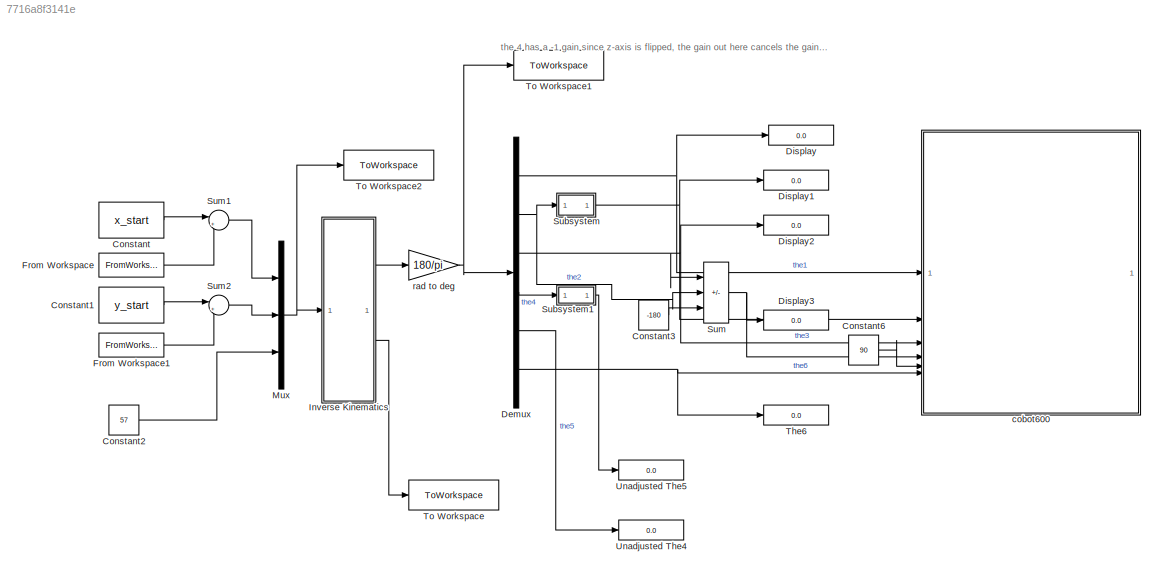
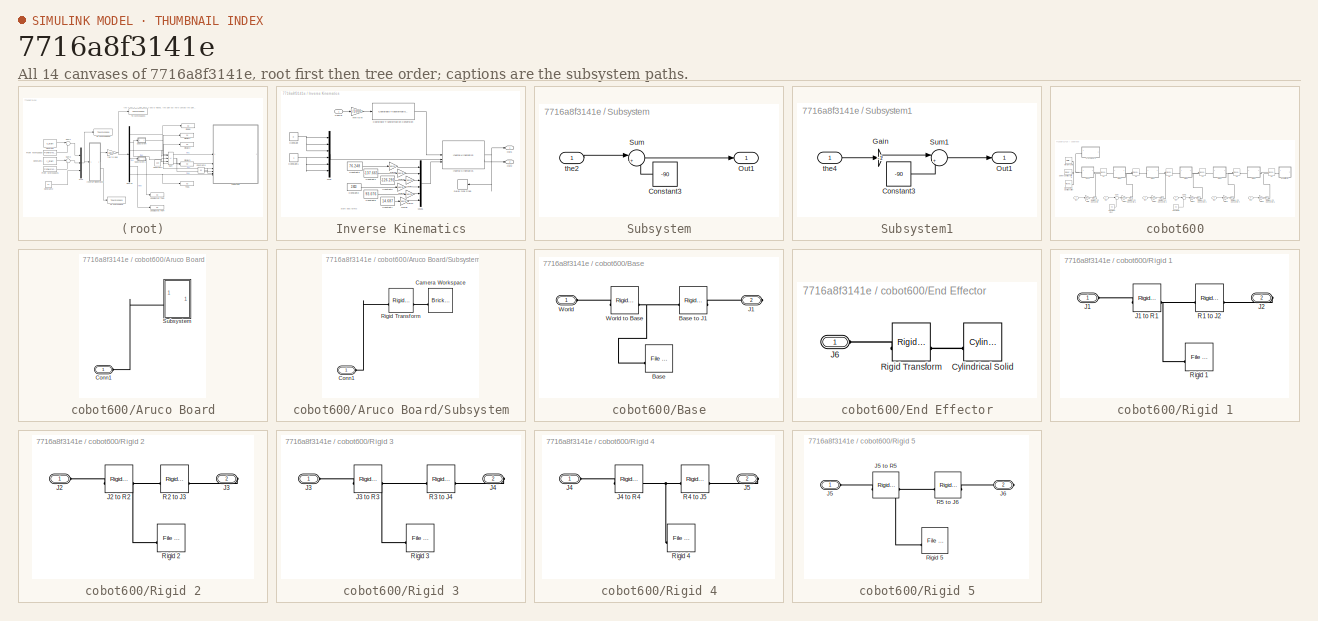
[diagram: thumbnail index - all 14 canvases of the model, root first then tree order]
MODEL slx_7716a8f3141e
KIND model
CONFIG AbsTol = auto
CONFIG EnableMultiTasking = off
CONFIG FixedStep = auto
CONFIG MaxStep = auto
CONFIG MinStep = auto
CONFIG RelTol = 1e-3
CONFIG SampleTimeConstraint = Unconstrained
CONFIG SolverName = VariableStepAuto
CONFIG StartTime = 0.0
CONFIG StopTime = 80
BLOCK [Constant] Constant
  SampleTime = 0.5
  Value = x_start
BLOCK [Constant] Constant1
  Value = y_start
BLOCK [Constant] Constant2
  Value = 57
BLOCK [Constant] Constant3
  Value = -180
BLOCK [Constant] Constant6
  Value = 90
BLOCK [Demux] Demux
  Outputs = 6
BLOCK [Display] Display
  Decimation = 1
BLOCK [Display] Display1
  Decimation = 1
BLOCK [Display] Display2
  Decimation = 1
BLOCK [Display] Display3
  Decimation = 1
BLOCK [FromWorkspace] From Workspace
  OutputAfterFinalValue = Setting to zero
  SampleTime = 0.5
  VariableName = x_Os
BLOCK [FromWorkspace] From Workspace1
  OutputAfterFinalValue = Setting to zero
  SampleTime = 0.5
  VariableName = y_Os
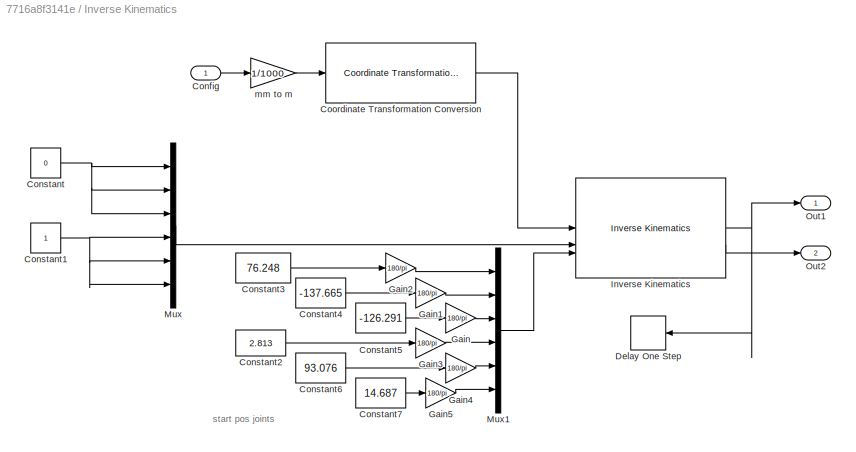
BLOCK [SubSystem] Inverse Kinematics
BLOCK [Inport] Inverse Kinematics/Config
BLOCK [Constant] Inverse Kinematics/Constant
  Value = 0
BLOCK [Constant] Inverse Kinematics/Constant1
BLOCK [Constant] Inverse Kinematics/Constant2
  Value = 2.813
BLOCK [Constant] Inverse Kinematics/Constant3
  Value = 76.248
BLOCK [Constant] Inverse Kinematics/Constant4
  Value = -137.665
BLOCK [Constant] Inverse Kinematics/Constant5
  Value = -126.291
BLOCK [Constant] Inverse Kinematics/Constant6
  Value = 93.076
BLOCK [Constant] Inverse Kinematics/Constant7
  Value = 14.687
BLOCK [Reference] Inverse Kinematics/Coordinate Transformation Conversion  REF=robotcorelib/Coordinate Transformation Conversion
  SourceBlock = robotcorelib/Coordinate Transformation Conversion
  SourceType = robotics.slcore.internal.block.CoordinateTransformationConversion
BLOCK [Delay] Inverse Kinematics/Delay One Step
  DelayLength = 1
  InputPortMap = u0
BLOCK [Gain] Inverse Kinematics/Gain
  Gain = 180/pi
BLOCK [Gain] Inverse Kinematics/Gain1
  Gain = 180/pi
BLOCK [Gain] Inverse Kinematics/Gain2
  Gain = 180/pi
BLOCK [Gain] Inverse Kinematics/Gain3
  Gain = 180/pi
BLOCK [Gain] Inverse Kinematics/Gain4
  Gain = 180/pi
BLOCK [Gain] Inverse Kinematics/Gain5
  Gain = 180/pi
BLOCK [Reference] Inverse Kinematics/Inverse Kinematics  REF=robotmaniplib/Inverse Kinematics
  SourceBlock = robotmaniplib/Inverse Kinematics
  SourceType = Inverse Kinematics
BLOCK [Mux] Inverse Kinematics/Mux
  DisplayOption = bar
  Inputs = 6
BLOCK [Mux] Inverse Kinematics/Mux1
  DisplayOption = bar
  Inputs = 6
BLOCK [Outport] Inverse Kinematics/Out1
BLOCK [Outport] Inverse Kinematics/Out2
  Port = 2
BLOCK [Gain] Inverse Kinematics/mm to m
  Gain = 1/1000
BLOCK [Mux] Mux
  DisplayOption = bar
  Inputs = 3
BLOCK [SubSystem] Subsystem
BLOCK [Constant] Subsystem/Constant3
  Value = -90
BLOCK [Outport] Subsystem/Out1
BLOCK [Sum] Subsystem/Sum
  Inputs = |++
BLOCK [Inport] Subsystem/the2
BLOCK [SubSystem] Subsystem1
BLOCK [Constant] Subsystem1/Constant3
  Value = -90
BLOCK [Gain] Subsystem1/Gain
  Gain = -1
BLOCK [Outport] Subsystem1/Out1
BLOCK [Sum] Subsystem1/Sum1
  Inputs = |++
BLOCK [Inport] Subsystem1/the4
BLOCK [Sum] Sum
  IconShape = rectangular
  Inputs = |--+
BLOCK [Sum] Sum1
  Inputs = |++
BLOCK [Sum] Sum2
  Inputs = |++
BLOCK [Display] The6
  Decimation = 1
BLOCK [ToWorkspace] To Workspace
  FixptAsFi = on
  MaxDataPoints = inf
  SampleTime = -1
  SaveFormat = Timeseries
  VariableName = simout
BLOCK [ToWorkspace] To Workspace1
  FixptAsFi = on
  MaxDataPoints = inf
  SampleTime = -1
  Save2DSignal = 2-D array (concatenate along first dimension)
  VariableName = IKJointData
BLOCK [ToWorkspace] To Workspace2
  FixptAsFi = on
  MaxDataPoints = inf
  SampleTime = -1
  Save2DSignal = 2-D array (concatenate along first dimension)
  VariableName = IK_Input
BLOCK [Display] Unadjusted The4
  Decimation = 1
BLOCK [Display] Unadjusted The5
  Decimation = 1
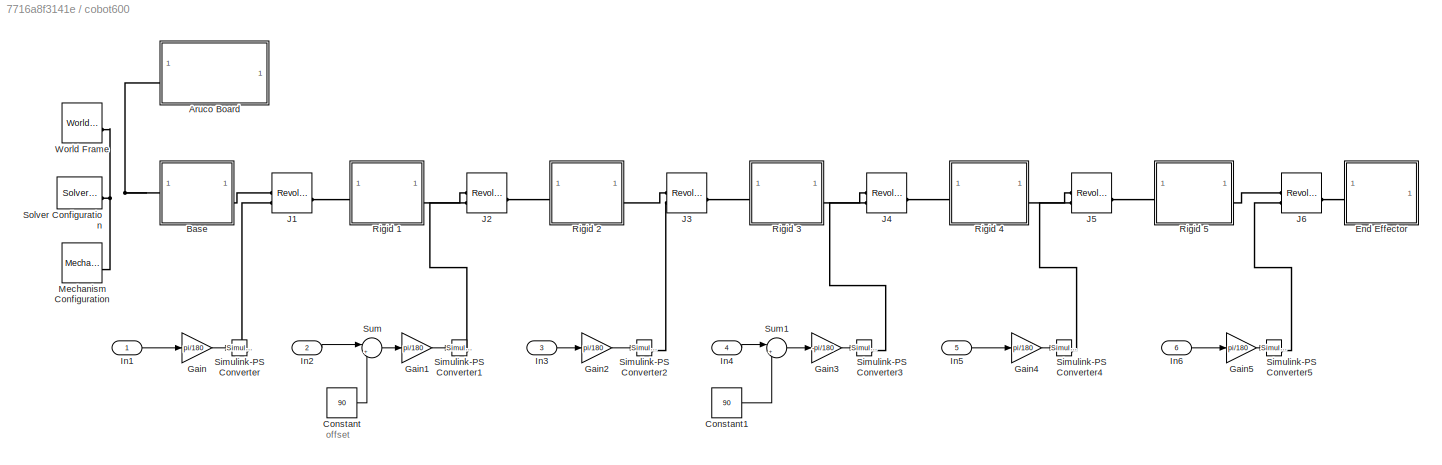
BLOCK [SubSystem] cobot600
BLOCK [SubSystem] cobot600/Aruco Board
BLOCK [PMIOPort] cobot600/Aruco Board/Conn1
  Side = Left
BLOCK [SubSystem] cobot600/Aruco Board/Subsystem
BLOCK [Reference] cobot600/Aruco Board/Subsystem/Camera Workspace  REF=sm_lib/Body Elements/Brick Solid
  SourceBlock = sm_lib/Body Elements/Brick Solid
  SourceType = Brick Solid
BLOCK [PMIOPort] cobot600/Aruco Board/Subsystem/Conn1
  Side = Left
BLOCK [Reference] cobot600/Aruco Board/Subsystem/Rigid Transform  REF=sm_lib/Frames and
Transforms/Rigid
Transform
  SourceBlock = sm_lib/Frames and\nTransforms/Rigid\nTransform
  SourceType = Rigid\nTransform
BLOCK [SubSystem] cobot600/Base
BLOCK [Reference] cobot600/Base/Base  REF=sm_lib/Body Elements/File Solid
  SourceBlock = sm_lib/Body Elements/File Solid
  SourceType = File Solid
BLOCK [Reference] cobot600/Base/Base to J1  REF=sm_lib/Frames and
Transforms/Rigid
Transform
  SourceBlock = sm_lib/Frames and\nTransforms/Rigid\nTransform
  SourceType = Rigid\nTransform
BLOCK [PMIOPort] cobot600/Base/J1
  Port = 2
  Side = Right
BLOCK [PMIOPort] cobot600/Base/World
  Side = Left
BLOCK [Reference] cobot600/Base/World to Base  REF=sm_lib/Frames and
Transforms/Rigid
Transform
  SourceBlock = sm_lib/Frames and\nTransforms/Rigid\nTransform
  SourceType = Rigid\nTransform
BLOCK [Constant] cobot600/Constant
  Value = 90
BLOCK [Constant] cobot600/Constant1
  Value = 90
BLOCK [SubSystem] cobot600/End Effector
BLOCK [Reference] cobot600/End Effector/Cylindrical Solid  REF=sm_lib/Body Elements/Cylindrical Solid
  SourceBlock = sm_lib/Body Elements/Cylindrical Solid
  SourceType = Cylindrical Solid
BLOCK [PMIOPort] cobot600/End Effector/J6
  Side = Left
BLOCK [Reference] cobot600/End Effector/Rigid Transform  REF=sm_lib/Frames and
Transforms/Rigid
Transform
  SourceBlock = sm_lib/Frames and\nTransforms/Rigid\nTransform
  SourceType = Rigid\nTransform
BLOCK [Gain] cobot600/Gain
  Gain = pi/180
BLOCK [Gain] cobot600/Gain1
  Gain = pi/180
BLOCK [Gain] cobot600/Gain2
  Gain = pi/180
BLOCK [Gain] cobot600/Gain3
  Gain = -pi/180
BLOCK [Gain] cobot600/Gain4
  Gain = pi/180
BLOCK [Gain] cobot600/Gain5
  Gain = pi/180
BLOCK [Inport] cobot600/In1
BLOCK [Inport] cobot600/In2
  Port = 2
BLOCK [Inport] cobot600/In3
  Port = 3
BLOCK [Inport] cobot600/In4
  Port = 4
BLOCK [Inport] cobot600/In5
  Port = 5
BLOCK [Inport] cobot600/In6
  Port = 6
BLOCK [Reference] cobot600/J1  REF=sm_lib/Joints/Revolute Joint
  SourceBlock = sm_lib/Joints/Revolute Joint
  SourceType = Revolute Joint
BLOCK [Reference] cobot600/J2  REF=sm_lib/Joints/Revolute Joint
  SourceBlock = sm_lib/Joints/Revolute Joint
  SourceType = Revolute Joint
BLOCK [Reference] cobot600/J3  REF=sm_lib/Joints/Revolute Joint
  SourceBlock = sm_lib/Joints/Revolute Joint
  SourceType = Revolute Joint
BLOCK [Reference] cobot600/J4  REF=sm_lib/Joints/Revolute Joint
  SourceBlock = sm_lib/Joints/Revolute Joint
  SourceType = Revolute Joint
BLOCK [Reference] cobot600/J5  REF=sm_lib/Joints/Revolute Joint
  SourceBlock = sm_lib/Joints/Revolute Joint
  SourceType = Revolute Joint
BLOCK [Reference] cobot600/J6  REF=sm_lib/Joints/Revolute Joint
  SourceBlock = sm_lib/Joints/Revolute Joint
  SourceType = Revolute Joint
BLOCK [Reference] cobot600/Mechanism Configuration  REF=sm_lib/Utilities/Mechanism
Configuration
  SourceBlock = sm_lib/Utilities/Mechanism\nConfiguration
  SourceType = Mechanism\nConfiguration
BLOCK [SubSystem] cobot600/Rigid 1
BLOCK [PMIOPort] cobot600/Rigid 1/J1
  Side = Left
BLOCK [Reference] cobot600/Rigid 1/J1 to R1  REF=sm_lib/Frames and
Transforms/Rigid
Transform
  SourceBlock = sm_lib/Frames and\nTransforms/Rigid\nTransform
  SourceType = Rigid\nTransform
BLOCK [PMIOPort] cobot600/Rigid 1/J2
  Port = 2
  Side = Right
BLOCK [Reference] cobot600/Rigid 1/R1 to J2  REF=sm_lib/Frames and
Transforms/Rigid
Transform
  SourceBlock = sm_lib/Frames and\nTransforms/Rigid\nTransform
  SourceType = Rigid\nTransform
BLOCK [Reference] cobot600/Rigid 1/Rigid 1  REF=sm_lib/Body Elements/File Solid
  SourceBlock = sm_lib/Body Elements/File Solid
  SourceType = File Solid
BLOCK [SubSystem] cobot600/Rigid 2
BLOCK [PMIOPort] cobot600/Rigid 2/J2
  Side = Left
BLOCK [Reference] cobot600/Rigid 2/J2 to R2  REF=sm_lib/Frames and
Transforms/Rigid
Transform
  SourceBlock = sm_lib/Frames and\nTransforms/Rigid\nTransform
  SourceType = Rigid\nTransform
BLOCK [PMIOPort] cobot600/Rigid 2/J3
  Port = 2
  Side = Right
BLOCK [Reference] cobot600/Rigid 2/R2 to J3  REF=sm_lib/Frames and
Transforms/Rigid
Transform
  SourceBlock = sm_lib/Frames and\nTransforms/Rigid\nTransform
  SourceType = Rigid\nTransform
BLOCK [Reference] cobot600/Rigid 2/Rigid 2  REF=sm_lib/Body Elements/File Solid
  SourceBlock = sm_lib/Body Elements/File Solid
  SourceType = File Solid
BLOCK [SubSystem] cobot600/Rigid 3
BLOCK [PMIOPort] cobot600/Rigid 3/J3
  Side = Left
BLOCK [Reference] cobot600/Rigid 3/J3 to R3  REF=sm_lib/Frames and
Transforms/Rigid
Transform
  SourceBlock = sm_lib/Frames and\nTransforms/Rigid\nTransform
  SourceType = Rigid\nTransform
BLOCK [PMIOPort] cobot600/Rigid 3/J4
  Port = 2
  Side = Right
BLOCK [Reference] cobot600/Rigid 3/R3 to J4  REF=sm_lib/Frames and
Transforms/Rigid
Transform
  SourceBlock = sm_lib/Frames and\nTransforms/Rigid\nTransform
  SourceType = Rigid\nTransform
BLOCK [Reference] cobot600/Rigid 3/Rigid 3  REF=sm_lib/Body Elements/File Solid
  SourceBlock = sm_lib/Body Elements/File Solid
  SourceType = File Solid
BLOCK [SubSystem] cobot600/Rigid 4
BLOCK [PMIOPort] cobot600/Rigid 4/J4
  Side = Left
BLOCK [Reference] cobot600/Rigid 4/J4 to R4  REF=sm_lib/Frames and
Transforms/Rigid
Transform
  SourceBlock = sm_lib/Frames and\nTransforms/Rigid\nTransform
  SourceType = Rigid\nTransform
BLOCK [PMIOPort] cobot600/Rigid 4/J5
  Port = 2
  Side = Right
BLOCK [Reference] cobot600/Rigid 4/R4 to J5  REF=sm_lib/Frames and
Transforms/Rigid
Transform
  SourceBlock = sm_lib/Frames and\nTransforms/Rigid\nTransform
  SourceType = Rigid\nTransform
BLOCK [Reference] cobot600/Rigid 4/Rigid 4  REF=sm_lib/Body Elements/File Solid
  SourceBlock = sm_lib/Body Elements/File Solid
  SourceType = File Solid
BLOCK [SubSystem] cobot600/Rigid 5
BLOCK [PMIOPort] cobot600/Rigid 5/J5
  Side = Left
BLOCK [Reference] cobot600/Rigid 5/J5 to R5  REF=sm_lib/Frames and
Transforms/Rigid
Transform
  SourceBlock = sm_lib/Frames and\nTransforms/Rigid\nTransform
  SourceType = Rigid\nTransform
BLOCK [PMIOPort] cobot600/Rigid 5/J6
  Port = 2
  Side = Right
BLOCK [Reference] cobot600/Rigid 5/R5 to J6  REF=sm_lib/Frames and
Transforms/Rigid
Transform
  SourceBlock = sm_lib/Frames and\nTransforms/Rigid\nTransform
  SourceType = Rigid\nTransform
BLOCK [Reference] cobot600/Rigid 5/Rigid 5  REF=sm_lib/Body Elements/File Solid
  SourceBlock = sm_lib/Body Elements/File Solid
  SourceType = File Solid
BLOCK [Reference] cobot600/Simulink-PS Converter  REF=nesl_utility/Simulink-PS
Converter
  SourceBlock = nesl_utility/Simulink-PS\nConverter
  SourceType = Simulink-PS\nConverter
BLOCK [Reference] cobot600/Simulink-PS Converter1  REF=nesl_utility/Simulink-PS
Converter
  SourceBlock = nesl_utility/Simulink-PS\nConverter
  SourceType = Simulink-PS\nConverter
BLOCK [Reference] cobot600/Simulink-PS Converter2  REF=nesl_utility/Simulink-PS
Converter
  SourceBlock = nesl_utility/Simulink-PS\nConverter
  SourceType = Simulink-PS\nConverter
BLOCK [Reference] cobot600/Simulink-PS Converter3  REF=nesl_utility/Simulink-PS
Converter
  SourceBlock = nesl_utility/Simulink-PS\nConverter
  SourceType = Simulink-PS\nConverter
BLOCK [Reference] cobot600/Simulink-PS Converter4  REF=nesl_utility/Simulink-PS
Converter
  SourceBlock = nesl_utility/Simulink-PS\nConverter
  SourceType = Simulink-PS\nConverter
BLOCK [Reference] cobot600/Simulink-PS Converter5  REF=nesl_utility/Simulink-PS
Converter
  SourceBlock = nesl_utility/Simulink-PS\nConverter
  SourceType = Simulink-PS\nConverter
BLOCK [Reference] cobot600/Solver Configuration  REF=nesl_utility/Solver
Configuration
  SourceBlock = nesl_utility/Solver\nConfiguration
  SourceType = Solver\nConfiguration
BLOCK [Sum] cobot600/Sum
  Inputs = |++
BLOCK [Sum] cobot600/Sum1
  Inputs = |++
BLOCK [Reference] cobot600/World Frame  REF=sm_lib/Frames and
Transforms/World Frame
  SourceBlock = sm_lib/Frames and\nTransforms/World Frame
  SourceType = World Frame
BLOCK [Gain] rad to deg 
  Gain = 180/pi
ANNOTATION (root): the 4 has a -1 gain since z-axis is flipped, the gain out here cancels the gain within the angle input on the robot side
ANNOTATION Inverse Kinematics: start pos joints
ANNOTATION cobot600: offset
LINE Constant1:1 -> Sum2:1
LINE Constant2:1 -> Mux:3
LINE Constant3:1 -> Sum:3
LINE Constant6:1 -> cobot600:5
LINE Constant:1 -> Sum1:1
NET Demux:1 -> Display:1, cobot600:1
NET Demux:2 -> Subsystem:1, Sum:2
NET Demux:3 -> Display2:1, Sum:1, cobot600:3
LINE Demux:4 -> Subsystem1:1
LINE Demux:5 -> Unadjusted The4:1
NET Demux:6 -> The6:1, cobot600:6
LINE From Workspace1:1 -> Sum2:2
LINE From Workspace:1 -> Sum1:2
LINE Inverse Kinematics/Config:1 -> Inverse Kinematics/mm to m:1
NET Inverse Kinematics/Constant1:1 -> Inverse Kinematics/Mux:4, Inverse Kinematics/Mux:5, Inverse Kinematics/Mux:6
LINE Inverse Kinematics/Constant2:1 -> Inverse Kinematics/Gain3:1
LINE Inverse Kinematics/Constant3:1 -> Inverse Kinematics/Gain2:1
LINE Inverse Kinematics/Constant4:1 -> Inverse Kinematics/Gain1:1
LINE Inverse Kinematics/Constant5:1 -> Inverse Kinematics/Gain:1
LINE Inverse Kinematics/Constant6:1 -> Inverse Kinematics/Gain4:1
LINE Inverse Kinematics/Constant7:1 -> Inverse Kinematics/Gain5:1
NET Inverse Kinematics/Constant:1 -> Inverse Kinematics/Mux:1, Inverse Kinematics/Mux:2, Inverse Kinematics/Mux:3
LINE Inverse Kinematics/Coordinate Transformation Conversion:1 -> Inverse Kinematics/Inverse Kinematics:1
LINE Inverse Kinematics/Gain1:1 -> Inverse Kinematics/Mux1:2
LINE Inverse Kinematics/Gain2:1 -> Inverse Kinematics/Mux1:1
LINE Inverse Kinematics/Gain3:1 -> Inverse Kinematics/Mux1:4
LINE Inverse Kinematics/Gain4:1 -> Inverse Kinematics/Mux1:5
LINE Inverse Kinematics/Gain5:1 -> Inverse Kinematics/Mux1:6
LINE Inverse Kinematics/Gain:1 -> Inverse Kinematics/Mux1:3
NET Inverse Kinematics/Inverse Kinematics:1 -> Inverse Kinematics/Delay One Step:1, Inverse Kinematics/Out1:1
LINE Inverse Kinematics/Inverse Kinematics:2 -> Inverse Kinematics/Out2:1
LINE Inverse Kinematics/Mux1:1 -> Inverse Kinematics/Inverse Kinematics:3
LINE Inverse Kinematics/Mux:1 -> Inverse Kinematics/Inverse Kinematics:2
LINE Inverse Kinematics/mm to m:1 -> Inverse Kinematics/Coordinate Transformation Conversion:1
LINE Inverse Kinematics:1 -> rad to deg :1
LINE Inverse Kinematics:2 -> To Workspace:1
NET Mux:1 -> Inverse Kinematics:1, To Workspace2:1
LINE Subsystem/Constant3:1 -> Subsystem/Sum:2
LINE Subsystem/Sum:1 -> Subsystem/Out1:1
LINE Subsystem/the2:1 -> Subsystem/Sum:1
LINE Subsystem1/Constant3:1 -> Subsystem1/Sum1:2
LINE Subsystem1/Gain:1 -> Subsystem1/Sum1:1
LINE Subsystem1/Sum1:1 -> Subsystem1/Out1:1
LINE Subsystem1/the4:1 -> Subsystem1/Gain:1
LINE Subsystem1:1 -> Unadjusted The5:1
NET Subsystem:1 -> Display1:1, cobot600:2
LINE Sum1:1 -> Mux:1
LINE Sum2:1 -> Mux:2
NET Sum:1 -> Display3:1, cobot600:4
LINE cobot600/Constant1:1 -> cobot600/Sum1:2
LINE cobot600/Constant:1 -> cobot600/Sum:2
LINE cobot600/Gain1:1 -> cobot600/Simulink-PS Converter1:1
LINE cobot600/Gain2:1 -> cobot600/Simulink-PS Converter2:1
LINE cobot600/Gain3:1 -> cobot600/Simulink-PS Converter3:1
LINE cobot600/Gain4:1 -> cobot600/Simulink-PS Converter4:1
LINE cobot600/Gain5:1 -> cobot600/Simulink-PS Converter5:1
LINE cobot600/Gain:1 -> cobot600/Simulink-PS Converter:1
LINE cobot600/In1:1 -> cobot600/Gain:1
LINE cobot600/In2:1 -> cobot600/Sum:1
LINE cobot600/In3:1 -> cobot600/Gain2:1
LINE cobot600/In4:1 -> cobot600/Sum1:1
LINE cobot600/In5:1 -> cobot600/Gain4:1
LINE cobot600/In6:1 -> cobot600/Gain5:1
LINE cobot600/Sum1:1 -> cobot600/Gain3:1
LINE cobot600/Sum:1 -> cobot600/Gain1:1
NET rad to deg :1 -> Demux:1, To Workspace1:1
PLINE cobot600/Aruco Board/Conn1:RConn1 -- cobot600/Aruco Board/Subsystem:LConn1
PLINE cobot600/Aruco Board/Subsystem/Camera Workspace:RConn1 -- cobot600/Aruco Board/Subsystem/Rigid Transform:RConn1
PLINE cobot600/Aruco Board/Subsystem/Conn1:RConn1 -- cobot600/Aruco Board/Subsystem/Rigid Transform:LConn1
PNET net1: cobot600/Aruco Board:LConn1 -- cobot600/Base:LConn1 -- cobot600/Mechanism Configuration:RConn1 -- cobot600/Solver Configuration:RConn1 -- cobot600/World Frame:RConn1
PNET net2: cobot600/Base/Base to J1:LConn1 -- cobot600/Base/Base:RConn1 -- cobot600/Base/World to Base:RConn1
PLINE cobot600/Base/Base to J1:RConn1 -- cobot600/Base/J1:RConn1
PLINE cobot600/Base/World to Base:LConn1 -- cobot600/Base/World:RConn1
PLINE cobot600/Base:RConn1 -- cobot600/J1:LConn1
PLINE cobot600/End Effector/Cylindrical Solid:RConn1 -- cobot600/End Effector/Rigid Transform:RConn1
PLINE cobot600/End Effector/J6:RConn1 -- cobot600/End Effector/Rigid Transform:LConn1
PLINE cobot600/End Effector:LConn1 -- cobot600/J6:RConn1
PLINE cobot600/J1:LConn2 -- cobot600/Simulink-PS Converter:RConn1
PLINE cobot600/J1:RConn1 -- cobot600/Rigid 1:LConn1
PLINE cobot600/J2:LConn1 -- cobot600/Rigid 1:RConn1
PLINE cobot600/J2:LConn2 -- cobot600/Simulink-PS Converter1:RConn1
PLINE cobot600/J2:RConn1 -- cobot600/Rigid 2:LConn1
PLINE cobot600/J3:LConn1 -- cobot600/Rigid 2:RConn1
PLINE cobot600/J3:LConn2 -- cobot600/Simulink-PS Converter2:RConn1
PLINE cobot600/J3:RConn1 -- cobot600/Rigid 3:LConn1
PLINE cobot600/J4:LConn1 -- cobot600/Rigid 3:RConn1
PLINE cobot600/J4:LConn2 -- cobot600/Simulink-PS Converter3:RConn1
PLINE cobot600/J4:RConn1 -- cobot600/Rigid 4:LConn1
PLINE cobot600/J5:LConn1 -- cobot600/Rigid 4:RConn1
PLINE cobot600/J5:LConn2 -- cobot600/Simulink-PS Converter4:RConn1
PLINE cobot600/J5:RConn1 -- cobot600/Rigid 5:LConn1
PLINE cobot600/J6:LConn1 -- cobot600/Rigid 5:RConn1
PLINE cobot600/J6:LConn2 -- cobot600/Simulink-PS Converter5:RConn1
PLINE cobot600/Rigid 1/J1 to R1:LConn1 -- cobot600/Rigid 1/J1:RConn1
PNET net3: cobot600/Rigid 1/J1 to R1:RConn1 -- cobot600/Rigid 1/R1 to J2:LConn1 -- cobot600/Rigid 1/Rigid 1:RConn1
PLINE cobot600/Rigid 1/J2:RConn1 -- cobot600/Rigid 1/R1 to J2:RConn1
PLINE cobot600/Rigid 2/J2 to R2:LConn1 -- cobot600/Rigid 2/J2:RConn1
PNET net4: cobot600/Rigid 2/J2 to R2:RConn1 -- cobot600/Rigid 2/R2 to J3:LConn1 -- cobot600/Rigid 2/Rigid 2:RConn1
PLINE cobot600/Rigid 2/J3:RConn1 -- cobot600/Rigid 2/R2 to J3:RConn1
PLINE cobot600/Rigid 3/J3 to R3:LConn1 -- cobot600/Rigid 3/J3:RConn1
PNET net5: cobot600/Rigid 3/J3 to R3:RConn1 -- cobot600/Rigid 3/R3 to J4:LConn1 -- cobot600/Rigid 3/Rigid 3:RConn1
PLINE cobot600/Rigid 3/J4:RConn1 -- cobot600/Rigid 3/R3 to J4:RConn1
PLINE cobot600/Rigid 4/J4 to R4:LConn1 -- cobot600/Rigid 4/J4:RConn1
PNET net6: cobot600/Rigid 4/J4 to R4:RConn1 -- cobot600/Rigid 4/R4 to J5:LConn1 -- cobot600/Rigid 4/Rigid 4:RConn1
PLINE cobot600/Rigid 4/J5:RConn1 -- cobot600/Rigid 4/R4 to J5:RConn1
PLINE cobot600/Rigid 5/J5 to R5:LConn1 -- cobot600/Rigid 5/J5:RConn1
PNET net7: cobot600/Rigid 5/J5 to R5:RConn1 -- cobot600/Rigid 5/R5 to J6:LConn1 -- cobot600/Rigid 5/Rigid 5:RConn1
PLINE cobot600/Rigid 5/J6:RConn1 -- cobot600/Rigid 5/R5 to J6:RConn1
note: NET lines group one-source signal fan-out (src -> all destinations, sorted); 1:1 wires keep LINE; PNET lines group multi-terminal physical nets as a canonical sorted terminal list (undirected conserving connections); 2-terminal nets keep the pairwise PLINE form
